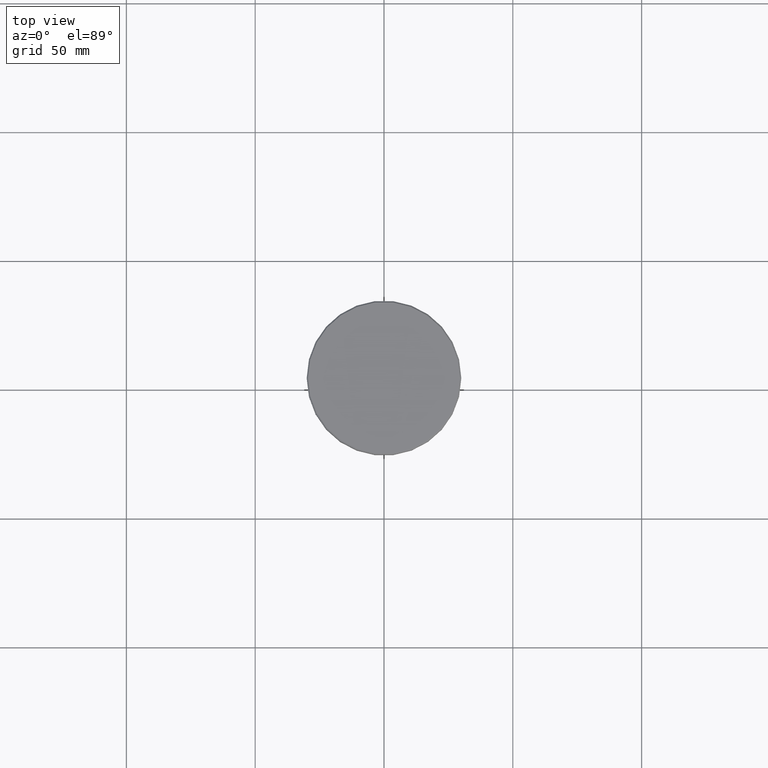
[diagram: clean part render]
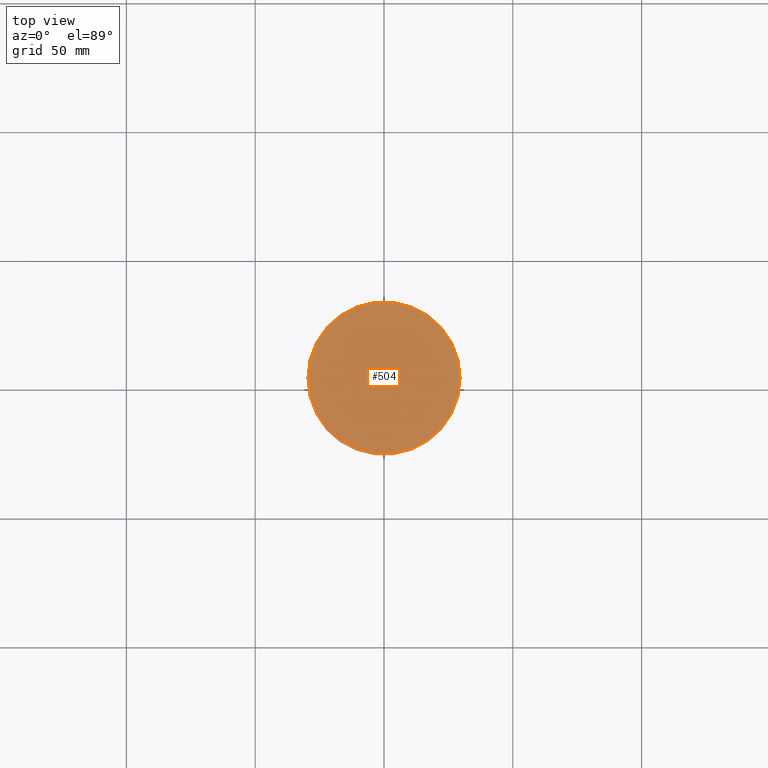
[diagram: same view with one face highlighted and labeled with its STEP entity id]
A machine part, top view. The second image highlights one B-rep face of the part: STEP entity #504.
In plain terms, the highlighted planar face has unit normal (0, -0, 1).
Its self-contained STEP definition (entity closure, byte-faithful):
#52 = EDGE_CURVE ( 'NONE', #1142, #195, #976, .T. ) ;
#58 = DIRECTION ( 'NONE',  ( -0.000000000000000000, -0.000000000000000000, 1.000000000000000000 ) ) ;
#137 = ORIENTED_EDGE ( 'NONE', *, *, #177, .T. ) ;
#177 = EDGE_CURVE ( 'NONE', #195, #1142, #898, .T. ) ;
#195 = VERTEX_POINT ( 'NONE', #1116 ) ;
#210 = AXIS2_PLACEMENT_3D ( 'NONE', #521, #790, #815 ) ;
#225 = DIRECTION ( 'NONE',  ( 1.000000000000000000, 0.000000000000000000, 0.000000000000000000 ) ) ;
#245 = AXIS2_PLACEMENT_3D ( 'NONE', #897, #58, #225 ) ;
#350 = CARTESIAN_POINT ( 'NONE',  ( 0.000000000000000000, 0.000000000000000000, 0.000000000000000000 ) ) ;
#420 = PLANE ( 'NONE',  #210 ) ;
#442 = EDGE_LOOP ( 'NONE', ( #137, #773 ) ) ;
#504 = ADVANCED_FACE ( 'NONE', ( #800 ), #420, .T. ) ;
#521 = CARTESIAN_POINT ( 'NONE',  ( 0.000000000000000000, 0.000000000000000000, 0.000000000000000000 ) ) ;
#632 = DIRECTION ( 'NONE',  ( 1.000000000000000000, 0.000000000000000000, 0.000000000000000000 ) ) ;
#658 = CARTESIAN_POINT ( 'NONE',  ( 29.50000000000002487, 3.643324227463376968E-15, 0.000000000000000000 ) ) ;
#720 = DIRECTION ( 'NONE',  ( -0.000000000000000000, -0.000000000000000000, 1.000000000000000000 ) ) ;
#773 = ORIENTED_EDGE ( 'NONE', *, *, #52, .T. ) ;
#790 = DIRECTION ( 'NONE',  ( 0.000000000000000000, -0.000000000000000000, 1.000000000000000000 ) ) ;
#800 = FACE_OUTER_BOUND ( 'NONE', #442, .T. ) ;
#815 = DIRECTION ( 'NONE',  ( 1.000000000000000000, 0.000000000000000000, 0.000000000000000000 ) ) ;
#822 = AXIS2_PLACEMENT_3D ( 'NONE', #350, #720, #632 ) ;
#897 = CARTESIAN_POINT ( 'NONE',  ( 0.000000000000000000, 0.000000000000000000, 0.000000000000000000 ) ) ;
#898 = CIRCLE ( 'NONE', #822, 29.50000000000002487 ) ;
#976 = CIRCLE ( 'NONE', #245, 29.50000000000002487 ) ;
#1116 = CARTESIAN_POINT ( 'NONE',  ( -29.50000000000002487, 0.000000000000000000, 0.000000000000000000 ) ) ;
#1142 = VERTEX_POINT ( 'NONE', #658 ) ;